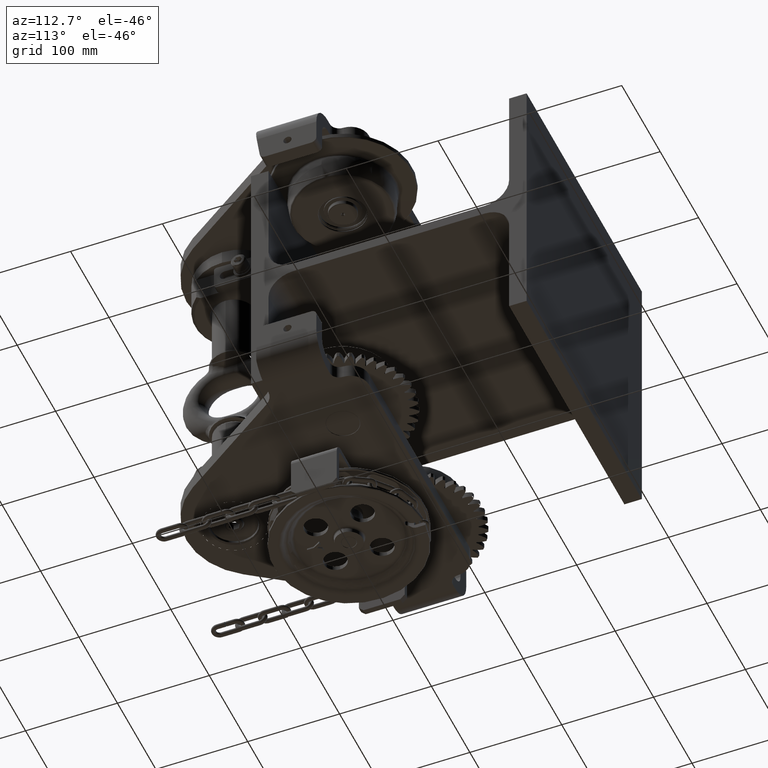
[diagram: clean part render]
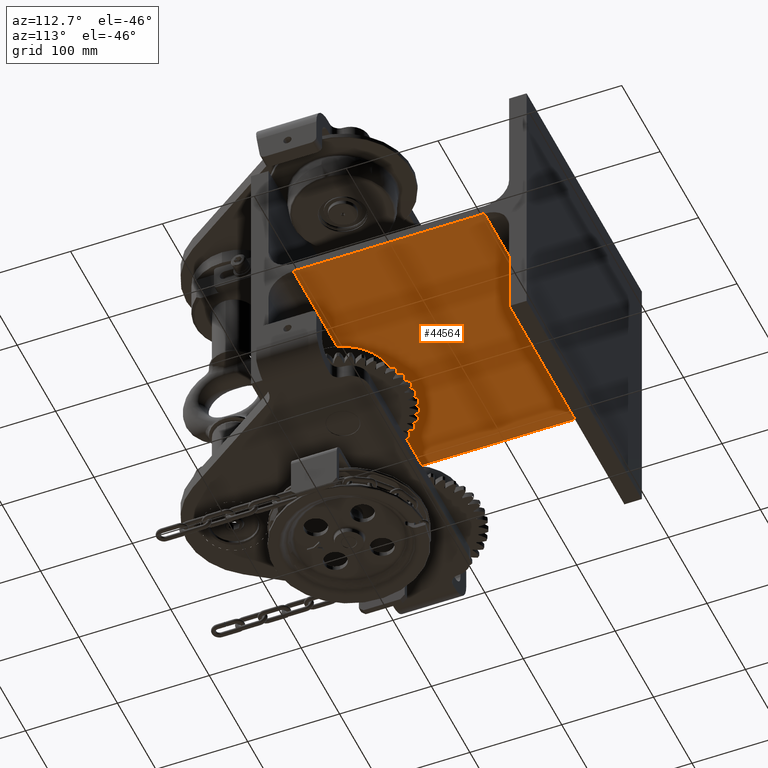
[diagram: same view with one face highlighted and labeled with its STEP entity id]
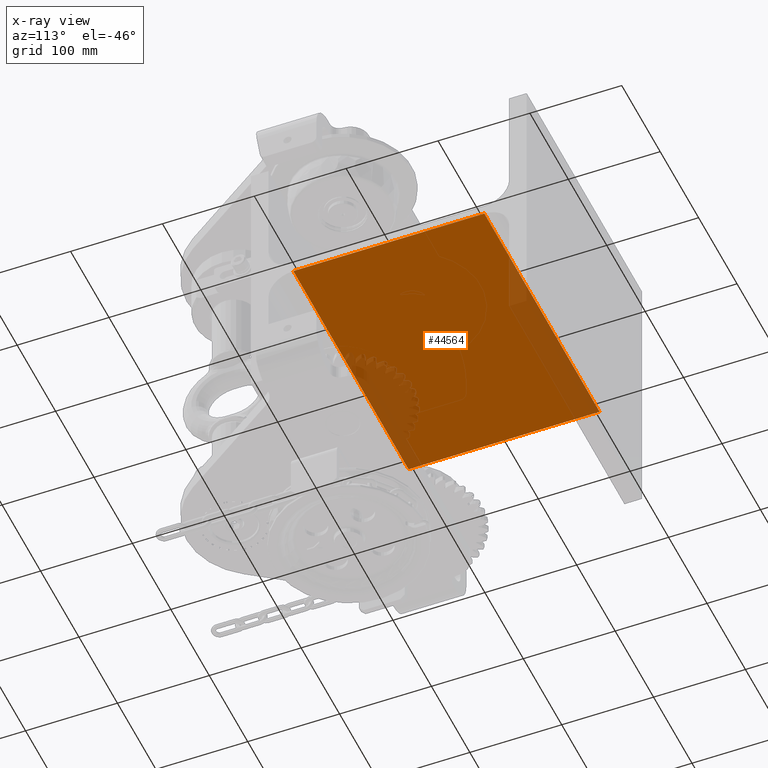
[diagram: x-ray of the same camera — body ghosted, the highlighted face saturated]
A machine part, auxiliary view. The second image highlights one B-rep face of the part: STEP entity #44564.
The next image is the same camera in x-ray: the body ghosted, the highlighted face saturated — about 17% of this face is hidden behind the body in this view.
In plain terms, the highlighted planar face has unit normal (-0, -0, -1).
Its self-contained STEP definition (entity closure, byte-faithful):
#2318 = VERTEX_POINT ( 'NONE', #45888 ) ;
#2556 = DIRECTION ( 'NONE',  ( 5.273559366969493600E-016, 1.000000000000000000, -5.381000649783789900E-016 ) ) ;
#5701 = ORIENTED_EDGE ( 'NONE', *, *, #12902, .T. ) ;
#10219 = LINE ( 'NONE', #23303, #21063 ) ;
#11814 = ORIENTED_EDGE ( 'NONE', *, *, #36054, .T. ) ;
#12902 = EDGE_CURVE ( 'NONE', #14166, #15409, #27354, .T. ) ;
#13870 = DIRECTION ( 'NONE',  ( 1.000000000000000000, -5.273559366969493600E-016, -5.680462498180316000E-017 ) ) ;
#14166 = VERTEX_POINT ( 'NONE', #37074 ) ;
#14918 = LINE ( 'NONE', #25704, #49835 ) ;
#15125 = EDGE_LOOP ( 'NONE', ( #31016, #46355, #11814, #5701 ) ) ;
#15378 = DIRECTION ( 'NONE',  ( -1.000000000000000000, 5.273559366969493600E-016, 5.680462498180316000E-017 ) ) ;
#15409 = VERTEX_POINT ( 'NONE', #51037 ) ;
#21010 = DIRECTION ( 'NONE',  ( 1.000000000000000000, -5.273559366969493600E-016, -5.680462498180316000E-017 ) ) ;
#21063 = VECTOR ( 'NONE', #46869, 1000.000000000000000 ) ;
#22331 = LINE ( 'NONE', #41722, #59336 ) ;
#23303 = CARTESIAN_POINT ( 'NONE',  ( 149.9999999999999700, -104.0000000000000100, -5.499999999999782400 ) ) ;
#23961 = DIRECTION ( 'NONE',  ( -5.680462498180344300E-017, -5.381000649783794900E-016, -1.000000000000000000 ) ) ;
#25297 = CARTESIAN_POINT ( 'NONE',  ( -150.0000000000000000, 103.9999999999999900, -5.499999999999884500 ) ) ;
#25704 = CARTESIAN_POINT ( 'NONE',  ( -150.0000000000001100, -103.9999999999998400, -5.499999999999762900 ) ) ;
#27354 = LINE ( 'NONE', #25297, #37482 ) ;
#28613 = EDGE_CURVE ( 'NONE', #51589, #2318, #22331, .T. ) ;
#28685 = AXIS2_PLACEMENT_3D ( 'NONE', #57162, #23961, #15378 ) ;
#31016 = ORIENTED_EDGE ( 'NONE', *, *, #57761, .F. ) ;
#36054 = EDGE_CURVE ( 'NONE', #51589, #14166, #14918, .T. ) ;
#37074 = CARTESIAN_POINT ( 'NONE',  ( -150.0000000000000000, 103.9999999999999900, -5.499999999999884500 ) ) ;
#37482 = VECTOR ( 'NONE', #21010, 1000.000000000000000 ) ;
#41722 = CARTESIAN_POINT ( 'NONE',  ( -150.0000000000001100, -103.9999999999998400, -5.499999999999762900 ) ) ;
#43630 = FACE_OUTER_BOUND ( 'NONE', #15125, .T. ) ;
#44564 = ADVANCED_FACE ( 'NONE', ( #43630 ), #51128, .T. ) ;
#45888 = CARTESIAN_POINT ( 'NONE',  ( 149.9999999999999700, -104.0000000000000100, -5.499999999999782400 ) ) ;
#46355 = ORIENTED_EDGE ( 'NONE', *, *, #28613, .F. ) ;
#46869 = DIRECTION ( 'NONE',  ( 5.273559366969493600E-016, 1.000000000000000000, -5.381000649783789900E-016 ) ) ;
#49835 = VECTOR ( 'NONE', #2556, 1000.000000000000000 ) ;
#51037 = CARTESIAN_POINT ( 'NONE',  ( 150.0000000000000900, 103.9999999999998200, -5.499999999999903200 ) ) ;
#51128 = PLANE ( 'NONE',  #28685 ) ;
#51589 = VERTEX_POINT ( 'NONE', #53057 ) ;
#53057 = CARTESIAN_POINT ( 'NONE',  ( -150.0000000000001100, -103.9999999999998400, -5.499999999999762900 ) ) ;
#57162 = CARTESIAN_POINT ( 'NONE',  ( -150.0000000000001100, -103.9999999999998400, -5.499999999999762900 ) ) ;
#57761 = EDGE_CURVE ( 'NONE', #2318, #15409, #10219, .T. ) ;
#59336 = VECTOR ( 'NONE', #13870, 1000.000000000000000 ) ;